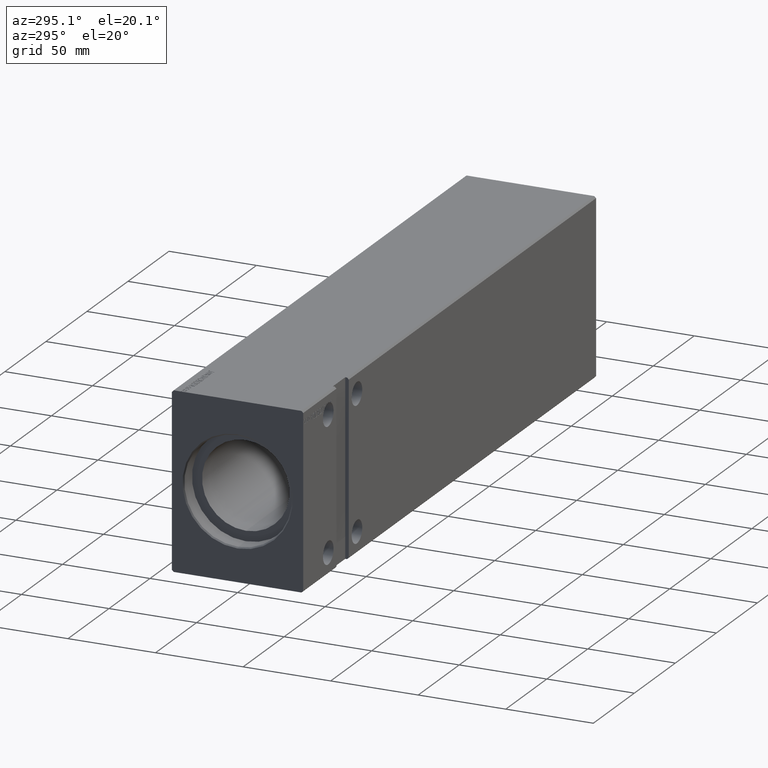
[diagram: clean part render]
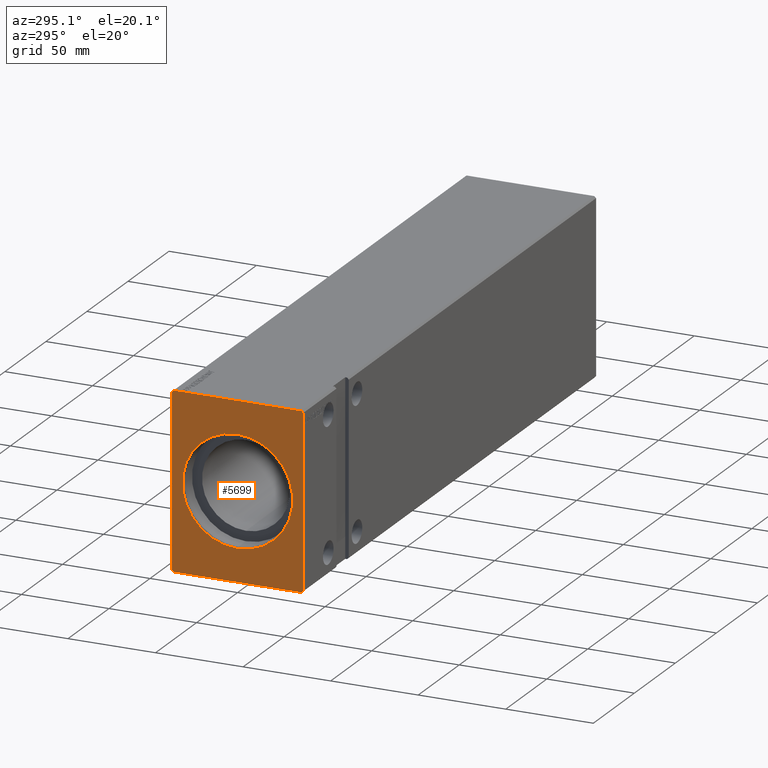
[diagram: same view with one face highlighted and labeled with its STEP entity id]
A machine part, auxiliary view. The second image highlights one B-rep face of the part: STEP entity #5699.
In plain terms, the highlighted planar face has unit normal (1, 0, 0).
Its self-contained STEP definition (entity closure, byte-faithful):
#692 = CARTESIAN_POINT ( 'NONE',  ( 0.000000000000000000, -36.50000000000000711, -50.00000000000000000 ) ) ;
#699 = ORIENTED_EDGE ( 'NONE', *, *, #24267, .F. ) ;
#2089 = DIRECTION ( 'NONE',  ( 0.000000000000000000, 0.7071067811865500152, -0.7071067811865451302 ) ) ;
#2111 = CARTESIAN_POINT ( 'NONE',  ( 0.000000000000000000, 36.50000000000000711, 50.00000000000000000 ) ) ;
#2402 = EDGE_CURVE ( 'NONE', #11667, #32023, #25840, .T. ) ;
#2814 = FACE_OUTER_BOUND ( 'NONE', #4663, .T. ) ;
#3625 = VECTOR ( 'NONE', #30624, 1000.000000000000000 ) ;
#3628 = VERTEX_POINT ( 'NONE', #23289 ) ;
#3671 = DIRECTION ( 'NONE',  ( 0.000000000000000000, 1.000000000000000000, 0.000000000000000000 ) ) ;
#4663 = EDGE_LOOP ( 'NONE', ( #33084, #13518, #38484, #6293, #39240, #39079, #699, #6673 ) ) ;
#5671 = EDGE_CURVE ( 'NONE', #30789, #33154, #36357, .T. ) ;
#5699 = ADVANCED_FACE ( 'NONE', ( #15240, #2814 ), #33701, .F. ) ;
#6293 = ORIENTED_EDGE ( 'NONE', *, *, #2402, .F. ) ;
#6515 = VECTOR ( 'NONE', #3671, 1000.000000000000000 ) ;
#6522 = ORIENTED_EDGE ( 'NONE', *, *, #5671, .T. ) ;
#6569 = LINE ( 'NONE', #35570, #33421 ) ;
#6673 = ORIENTED_EDGE ( 'NONE', *, *, #23850, .F. ) ;
#7031 = EDGE_CURVE ( 'NONE', #33154, #30789, #9257, .T. ) ;
#8495 = CARTESIAN_POINT ( 'NONE',  ( 0.000000000000000000, 0.000000000000000000, 31.44999999999992113 ) ) ;
#8642 = LINE ( 'NONE', #17378, #3625 ) ;
#8671 = VECTOR ( 'NONE', #2089, 1000.000000000000114 ) ;
#8986 = DIRECTION ( 'NONE',  ( 0.000000000000000000, 0.7071067811865474617, 0.7071067811865474617 ) ) ;
#9257 = CIRCLE ( 'NONE', #32441, 31.44999999999992113 ) ;
#9889 = AXIS2_PLACEMENT_3D ( 'NONE', #24356, #40114, #15451 ) ;
#10426 = CARTESIAN_POINT ( 'NONE',  ( 0.000000000000000000, 0.000000000000000000, 0.000000000000000000 ) ) ;
#10568 = CARTESIAN_POINT ( 'NONE',  ( 0.000000000000000000, -37.50000000000001421, -49.00000000000000000 ) ) ;
#10664 = DIRECTION ( 'NONE',  ( 0.000000000000000000, 0.000000000000000000, 1.000000000000000000 ) ) ;
#11489 = CARTESIAN_POINT ( 'NONE',  ( 0.000000000000000000, 36.50000000000000711, -50.00000000000000000 ) ) ;
#11667 = VERTEX_POINT ( 'NONE', #692 ) ;
#13518 = ORIENTED_EDGE ( 'NONE', *, *, #23628, .F. ) ;
#13605 = DIRECTION ( 'NONE',  ( 0.000000000000000000, -0.7071067811865474617, 0.7071067811865474617 ) ) ;
#13860 = VECTOR ( 'NONE', #39710, 1000.000000000000114 ) ;
#13977 = CARTESIAN_POINT ( 'NONE',  ( 0.000000000000000000, 37.50000000000000711, -49.00000000000000000 ) ) ;
#14133 = EDGE_CURVE ( 'NONE', #3628, #38920, #8642, .T. ) ;
#14309 = EDGE_CURVE ( 'NONE', #23743, #40017, #6569, .T. ) ;
#14427 = CARTESIAN_POINT ( 'NONE',  ( 0.000000000000000000, -36.50000000000001421, 49.99999999999998579 ) ) ;
#15240 = FACE_BOUND ( 'NONE', #39594, .T. ) ;
#15451 = DIRECTION ( 'NONE',  ( 0.000000000000000000, 0.000000000000000000, -1.000000000000000000 ) ) ;
#16483 = LINE ( 'NONE', #13977, #40988 ) ;
#17031 = CARTESIAN_POINT ( 'NONE',  ( 0.000000000000000000, 3.851514183318416150E-15, -31.44999999999992113 ) ) ;
#17378 = CARTESIAN_POINT ( 'NONE',  ( 0.000000000000000000, -37.50000000000001421, 48.99999999999998579 ) ) ;
#17545 = LINE ( 'NONE', #14427, #13860 ) ;
#18663 = CARTESIAN_POINT ( 'NONE',  ( 0.000000000000000000, -37.50000000000001421, -49.00000000000000000 ) ) ;
#18704 = CARTESIAN_POINT ( 'NONE',  ( 0.000000000000000000, 37.50000000000000711, -49.00000000000000000 ) ) ;
#18931 = LINE ( 'NONE', #35652, #33885 ) ;
#20135 = LINE ( 'NONE', #22639, #23781 ) ;
#21854 = VERTEX_POINT ( 'NONE', #40375 ) ;
#22639 = CARTESIAN_POINT ( 'NONE',  ( 0.000000000000000000, 36.50000000000000711, 50.00000000000000000 ) ) ;
#23289 = CARTESIAN_POINT ( 'NONE',  ( 0.000000000000000000, -37.50000000000001421, 48.99999999999998579 ) ) ;
#23628 = EDGE_CURVE ( 'NONE', #30623, #23743, #16483, .T. ) ;
#23743 = VERTEX_POINT ( 'NONE', #24307 ) ;
#23781 = VECTOR ( 'NONE', #35695, 1000.000000000000000 ) ;
#23850 = EDGE_CURVE ( 'NONE', #40017, #21854, #20135, .T. ) ;
#24267 = EDGE_CURVE ( 'NONE', #21854, #3628, #17545, .T. ) ;
#24307 = CARTESIAN_POINT ( 'NONE',  ( 0.000000000000000000, 37.50000000000000711, 49.00000000000000000 ) ) ;
#24356 = CARTESIAN_POINT ( 'NONE',  ( 0.000000000000000000, 0.000000000000000000, 0.000000000000000000 ) ) ;
#24774 = DIRECTION ( 'NONE',  ( 1.000000000000000000, 0.000000000000000000, 0.000000000000000000 ) ) ;
#25840 = LINE ( 'NONE', #39286, #6515 ) ;
#27478 = CARTESIAN_POINT ( 'NONE',  ( 0.000000000000000000, 0.000000000000000000, 0.000000000000000000 ) ) ;
#28765 = EDGE_CURVE ( 'NONE', #38920, #11667, #40431, .T. ) ;
#29823 = EDGE_CURVE ( 'NONE', #32023, #30623, #18931, .T. ) ;
#30623 = VERTEX_POINT ( 'NONE', #18704 ) ;
#30624 = DIRECTION ( 'NONE',  ( 0.000000000000000000, 0.000000000000000000, -1.000000000000000000 ) ) ;
#30789 = VERTEX_POINT ( 'NONE', #17031 ) ;
#31752 = AXIS2_PLACEMENT_3D ( 'NONE', #27478, #24774, #36808 ) ;
#32023 = VERTEX_POINT ( 'NONE', #11489 ) ;
#32441 = AXIS2_PLACEMENT_3D ( 'NONE', #10426, #32624, #40956 ) ;
#32624 = DIRECTION ( 'NONE',  ( 1.000000000000000000, 0.000000000000000000, 0.000000000000000000 ) ) ;
#33084 = ORIENTED_EDGE ( 'NONE', *, *, #14309, .F. ) ;
#33154 = VERTEX_POINT ( 'NONE', #8495 ) ;
#33421 = VECTOR ( 'NONE', #13605, 1000.000000000000114 ) ;
#33701 = PLANE ( 'NONE',  #9889 ) ;
#33885 = VECTOR ( 'NONE', #8986, 1000.000000000000114 ) ;
#35570 = CARTESIAN_POINT ( 'NONE',  ( 0.000000000000000000, 37.50000000000000711, 49.00000000000000000 ) ) ;
#35652 = CARTESIAN_POINT ( 'NONE',  ( 0.000000000000000000, 36.50000000000000711, -50.00000000000000000 ) ) ;
#35695 = DIRECTION ( 'NONE',  ( 0.000000000000000000, -1.000000000000000000, -1.901066822988281457E-16 ) ) ;
#36357 = CIRCLE ( 'NONE', #31752, 31.44999999999992113 ) ;
#36808 = DIRECTION ( 'NONE',  ( 0.000000000000000000, 0.000000000000000000, -1.000000000000000000 ) ) ;
#38484 = ORIENTED_EDGE ( 'NONE', *, *, #29823, .F. ) ;
#38920 = VERTEX_POINT ( 'NONE', #10568 ) ;
#39079 = ORIENTED_EDGE ( 'NONE', *, *, #14133, .F. ) ;
#39240 = ORIENTED_EDGE ( 'NONE', *, *, #28765, .F. ) ;
#39286 = CARTESIAN_POINT ( 'NONE',  ( 0.000000000000000000, -36.50000000000000711, -50.00000000000000000 ) ) ;
#39594 = EDGE_LOOP ( 'NONE', ( #40258, #6522 ) ) ;
#39710 = DIRECTION ( 'NONE',  ( 0.000000000000000000, -0.7071067811865474617, -0.7071067811865474617 ) ) ;
#40017 = VERTEX_POINT ( 'NONE', #2111 ) ;
#40114 = DIRECTION ( 'NONE',  ( 1.000000000000000000, 0.000000000000000000, 0.000000000000000000 ) ) ;
#40258 = ORIENTED_EDGE ( 'NONE', *, *, #7031, .T. ) ;
#40375 = CARTESIAN_POINT ( 'NONE',  ( 0.000000000000000000, -36.50000000000001421, 49.99999999999998579 ) ) ;
#40431 = LINE ( 'NONE', #18663, #8671 ) ;
#40956 = DIRECTION ( 'NONE',  ( 0.000000000000000000, 0.000000000000000000, -1.000000000000000000 ) ) ;
#40988 = VECTOR ( 'NONE', #10664, 1000.000000000000000 ) ;